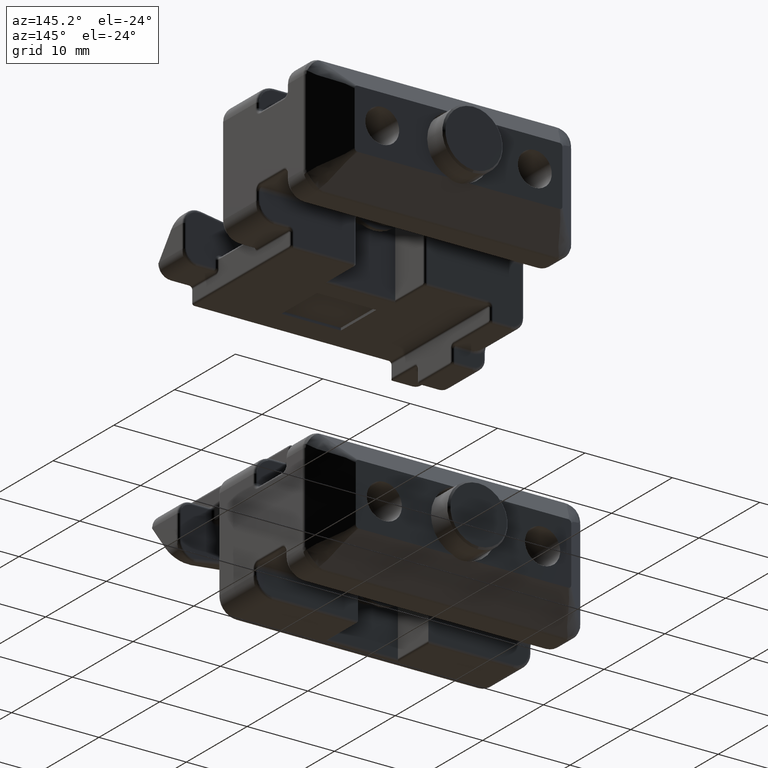
[diagram: clean part render]
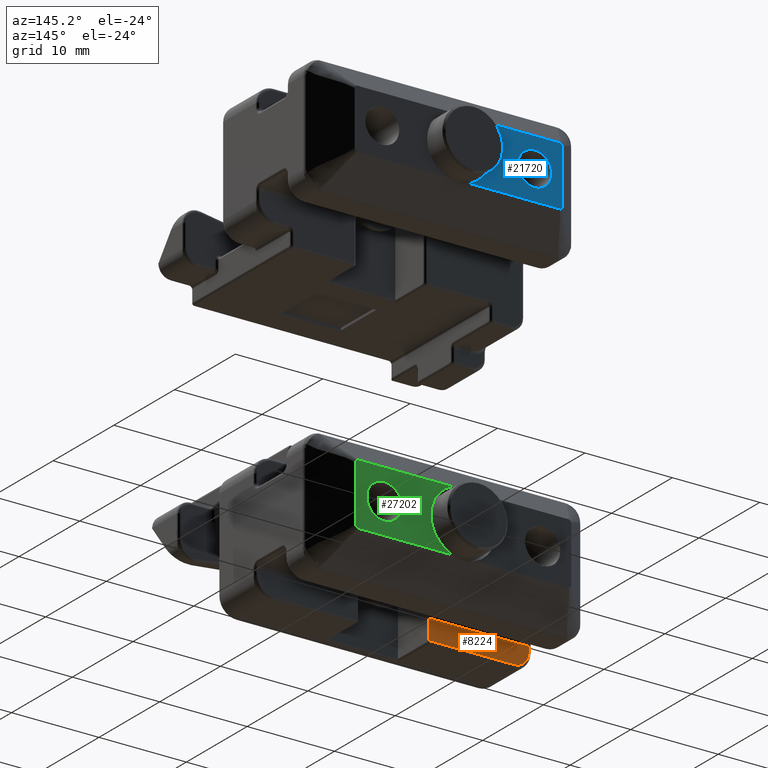
[diagram: same view with three faces highlighted in distinct colors, each labeled with its STEP entity id]
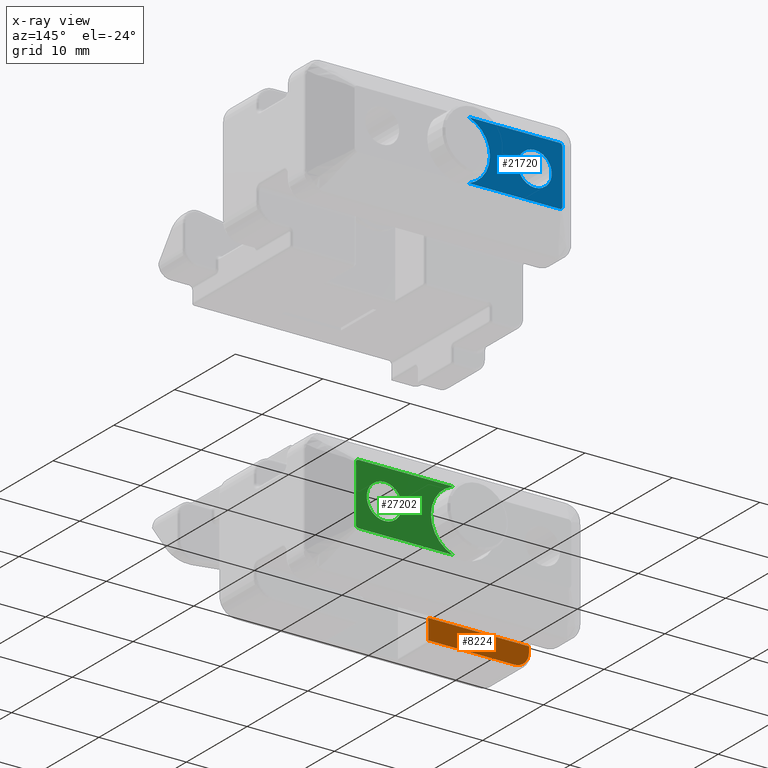
[diagram: x-ray of the same camera — body ghosted, the three highlighted faces saturated]
A machine part, auxiliary view with three faces highlighted in distinct colors.
The next image is the same camera in x-ray (body ghosted, the three faces saturated) — at least one of them is partly hidden behind the body in this view.
Their STEP definitions:

[orange] entity #8224 — the highlighted planar face has unit normal (0, -1, 0).
#39 = DIRECTION ( 'NONE',  ( -1.000000000000000000, -0.0000000000000000000, -0.0000000000000000000 ) ) ;
#220 = VECTOR ( 'NONE', #18073, 1000.000000000000000 ) ;
#228 = LINE ( 'NONE', #20697, #220 ) ;
#458 = CARTESIAN_POINT ( 'NONE',  ( -115.4299052700655000, 53.60120506187342200, -65.00413926972206000 ) ) ;
#562 = CARTESIAN_POINT ( 'NONE',  ( -115.1834542875697700, 53.60120491132435900, -65.23172811979715400 ) ) ;
#668 = CARTESIAN_POINT ( 'NONE',  ( -114.7499376024052100, 53.60120505625111100, -65.47008172239357300 ) ) ;
#749 = ORIENTED_EDGE ( 'NONE', *, *, #6576, .F. ) ;
#771 = CARTESIAN_POINT ( 'NONE',  ( -114.1511978571563500, 53.60120507557526500, -65.57791073726552600 ) ) ;
#1839 = AXIS2_PLACEMENT_3D ( 'NONE', #5778, #5668, #5598 ) ;
#2111 = VERTEX_POINT ( 'NONE', #10734 ) ;
#2650 = CARTESIAN_POINT ( 'NONE',  ( -104.3426978571563400, 53.60120507557526500, -63.26411073726552600 ) ) ;
#2889 = CARTESIAN_POINT ( 'NONE',  ( -115.3781884469799500, 53.60120507460014500, -65.05912077738888400 ) ) ;
#2999 = CARTESIAN_POINT ( 'NONE',  ( -115.1117456607731000, 53.60120483907727600, -65.28340974278640400 ) ) ;
#3109 = CARTESIAN_POINT ( 'NONE',  ( -114.6981037893318800, 53.60120506530973500, -65.48819185909150100 ) ) ;
#4352 = VECTOR ( 'NONE', #12678, 1000.000000000000000 ) ;
#4880 = CARTESIAN_POINT ( 'NONE',  ( -115.8613978571563300, 53.60120507557526500, -63.86771073726553300 ) ) ;
#5247 = CARTESIAN_POINT ( 'NONE',  ( -115.8211206106678600, 53.60120507479586400, -64.24043743906889900 ) ) ;
#5366 = CARTESIAN_POINT ( 'NONE',  ( -115.3655702166019200, 53.60120507548579400, -65.07191711142412800 ) ) ;
#5471 = CARTESIAN_POINT ( 'NONE',  ( -115.0651277324611900, 53.60120485360522500, -65.31372296417228500 ) ) ;
#5583 = CARTESIAN_POINT ( 'NONE',  ( -114.6941087233894500, 53.60120506504564000, -65.48953211541510200 ) ) ;
#5598 = DIRECTION ( 'NONE',  ( 0.0000000000000000000, -0.0000000000000000000, -1.000000000000000000 ) ) ;
#5668 = DIRECTION ( 'NONE',  ( 0.0000000000000000000, -1.000000000000000000, 0.0000000000000000000 ) ) ;
#5761 = ORIENTED_EDGE ( 'NONE', *, *, #20480, .F. ) ;
#5778 = CARTESIAN_POINT ( 'NONE',  ( -84.47419785715634100, 53.60120507557526500, -65.87971073726554000 ) ) ;
#6576 = EDGE_CURVE ( 'NONE', #2111, #10804, #30123, .T. ) ;
#6866 = PLANE ( 'NONE',  #1839 ) ;
#7693 = CARTESIAN_POINT ( 'NONE',  ( -115.7788110588676300, 53.60120506588097600, -64.39576171868297600 ) ) ;
#7799 = CARTESIAN_POINT ( 'NONE',  ( -115.3605921213949000, 53.60120507557524400, -65.07690472036432500 ) ) ;
#7830 = EDGE_CURVE ( 'NONE', #14963, #31024, #18726, .T. ) ;
#7905 = CARTESIAN_POINT ( 'NONE',  ( -115.0470213100227300, 53.60120487109871600, -65.32494555133331500 ) ) ;
#8018 = CARTESIAN_POINT ( 'NONE',  ( -114.6887803458120500, 53.60120506324509600, -65.49131652284593500 ) ) ;
#8224 = ADVANCED_FACE ( 'NONE', ( #13194 ), #6866, .F. ) ;
#10087 = CARTESIAN_POINT ( 'NONE',  ( -115.6955554626971000, 53.60120498934524800, -64.61187881539402200 ) ) ;
#10194 = CARTESIAN_POINT ( 'NONE',  ( -115.3220266540998300, 53.60120510193009100, -65.11828039354198000 ) ) ;
#10301 = CARTESIAN_POINT ( 'NONE',  ( -115.0178956329188100, 53.60120490010977800, -65.34251489384840300 ) ) ;
#10400 = CARTESIAN_POINT ( 'NONE',  ( -114.6600709656771500, 53.60120505219152400, -65.50067090744362000 ) ) ;
#10734 = CARTESIAN_POINT ( 'NONE',  ( -115.8613978571563300, 53.60120507557526500, -63.26411073726552600 ) ) ;
#10804 = VERTEX_POINT ( 'NONE', #4880 ) ;
#10981 = EDGE_LOOP ( 'NONE', ( #14453, #5761, #749, #13761, #15890 ) ) ;
#12483 = CARTESIAN_POINT ( 'NONE',  ( -104.3426978571563200, 53.60120507557526500, -65.57791073726552600 ) ) ;
#12531 = CARTESIAN_POINT ( 'NONE',  ( -115.5467765830653800, 53.60120500133741900, -64.85825493300838200 ) ) ;
#12637 = CARTESIAN_POINT ( 'NONE',  ( -115.2266039293510300, 53.60120498008633700, -65.19786147841985300 ) ) ;
#12639 = CARTESIAN_POINT ( 'NONE',  ( -115.8613978571563300, 53.60120507557526500, -65.87971073726554000 ) ) ;
#12678 = DIRECTION ( 'NONE',  ( 0.0000000000000000000, -0.0000000000000000000, -1.000000000000000000 ) ) ;
#12734 = CARTESIAN_POINT ( 'NONE',  ( -114.9460336070498400, 53.60120496257781800, -65.38312108645389700 ) ) ;
#12836 = CARTESIAN_POINT ( 'NONE',  ( -114.5241288073681600, 53.60120499331505800, -65.53784569567641000 ) ) ;
#13180 = EDGE_CURVE ( 'NONE', #18154, #14963, #228, .T. ) ;
#13194 = FACE_OUTER_BOUND ( 'NONE', #10981, .T. ) ;
#13619 = CARTESIAN_POINT ( 'NONE',  ( -114.1511978571563500, 53.60120507557526500, -65.57791073726552600 ) ) ;
#13761 = ORIENTED_EDGE ( 'NONE', *, *, #22117, .F. ) ;
#14453 = ORIENTED_EDGE ( 'NONE', *, *, #13180, .F. ) ;
#14756 = CARTESIAN_POINT ( 'NONE',  ( -115.8613324351292700, 53.60120507557525800, -63.97501925028387100 ) ) ;
#14852 = CARTESIAN_POINT ( 'NONE',  ( -115.4580465291872400, 53.60120504839054700, -64.97143189717780800 ) ) ;
#14953 = CARTESIAN_POINT ( 'NONE',  ( -115.2015944771943600, 53.60120493970447300, -65.21770686577041000 ) ) ;
#14963 = VERTEX_POINT ( 'NONE', #12483 ) ;
#15058 = CARTESIAN_POINT ( 'NONE',  ( -114.8007502006629700, 53.60120504527495200, -65.45180597104328500 ) ) ;
#15162 = CARTESIAN_POINT ( 'NONE',  ( -114.2585491954485700, 53.60120507557525100, -65.57807062695005100 ) ) ;
#15890 = ORIENTED_EDGE ( 'NONE', *, *, #7830, .F. ) ;
#17189 = CARTESIAN_POINT ( 'NONE',  ( -115.3956578141173800, 53.60120507183642500, -65.04101354350899600 ) ) ;
#17295 = CARTESIAN_POINT ( 'NONE',  ( -115.1473167499237700, 53.60120485929290600, -65.25887081750974500 ) ) ;
#17395 = CARTESIAN_POINT ( 'NONE',  ( -114.7069487610251000, 53.60120506434996200, -65.48525179407433000 ) ) ;
#17525 = LINE ( 'NONE', #19327, #23117 ) ;
#18073 = DIRECTION ( 'NONE',  ( 1.000000000000000000, -0.0000000000000000000, -0.0000000000000000000 ) ) ;
#18154 = VERTEX_POINT ( 'NONE', #13619 ) ;
#18726 = LINE ( 'NONE', #20314, #28028 ) ;
#19317 = CARTESIAN_POINT ( 'NONE',  ( -115.8613978571563300, 53.60120507557526500, -63.86771073726553300 ) ) ;
#19327 = CARTESIAN_POINT ( 'NONE',  ( -84.47419785715634100, 53.60120507557526500, -63.26411073726552600 ) ) ;
#19514 = CARTESIAN_POINT ( 'NONE',  ( -115.8511886554271700, 53.60120506686172300, -64.08231301596480000 ) ) ;
#19613 = CARTESIAN_POINT ( 'NONE',  ( -115.3693684089188300, 53.60120507532634800, -65.06809082732833400 ) ) ;
#19719 = CARTESIAN_POINT ( 'NONE',  ( -115.0767148546801300, 53.60120484664186300, -65.30634507328862500 ) ) ;
#19817 = CARTESIAN_POINT ( 'NONE',  ( -114.6944299140168200, 53.60120506508989300, -65.48942442144966900 ) ) ;
#20250 = DIRECTION ( 'NONE',  ( -0.0000000000000000000, 0.0000000000000000000, 1.000000000000000000 ) ) ;
#20314 = CARTESIAN_POINT ( 'NONE',  ( -104.3426978571563400, 53.60120507557526500, -65.87971073726554000 ) ) ;
#20480 = EDGE_CURVE ( 'NONE', #10804, #18154, #27371, .T. ) ;
#20697 = CARTESIAN_POINT ( 'NONE',  ( -84.47419785715634100, 53.60120507557526500, -65.57791073726552600 ) ) ;
#21886 = CARTESIAN_POINT ( 'NONE',  ( -115.8086279519287600, 53.60120507858651000, -64.29267662478943600 ) ) ;
#21984 = CARTESIAN_POINT ( 'NONE',  ( -115.3630340620397000, 53.60120507555709700, -65.07446394957072800 ) ) ;
#22085 = CARTESIAN_POINT ( 'NONE',  ( -115.0507713193798100, 53.60120486712171600, -65.32262532498566500 ) ) ;
#22117 = EDGE_CURVE ( 'NONE', #31024, #2111, #17525, .T. ) ;
#22186 = CARTESIAN_POINT ( 'NONE',  ( -114.6936404815802700, 53.60120506491676200, -65.48968929889720400 ) ) ;
#23117 = VECTOR ( 'NONE', #39, 1000.000000000000000 ) ;
#24309 = CARTESIAN_POINT ( 'NONE',  ( -115.7597656586572200, 53.60120504489524500, -64.45173126418913500 ) ) ;
#24420 = CARTESIAN_POINT ( 'NONE',  ( -115.3572839686353000, 53.60120507557525100, -65.08020584521659700 ) ) ;
#24523 = CARTESIAN_POINT ( 'NONE',  ( -115.0353025918647100, 53.60120488296633600, -65.33207284576511100 ) ) ;
#24627 = CARTESIAN_POINT ( 'NONE',  ( -114.6792230784798100, 53.60120505976245700, -65.49447244471700500 ) ) ;
#26690 = CARTESIAN_POINT ( 'NONE',  ( -115.6418964607943400, 53.60120496900118800, -64.71429611797434200 ) ) ;
#26794 = CARTESIAN_POINT ( 'NONE',  ( -115.2367320072921300, 53.60120499435246400, -65.18957003299252100 ) ) ;
#26884 = CARTESIAN_POINT ( 'NONE',  ( -115.0010211859749200, 53.60120491538342700, -65.35223343083554000 ) ) ;
#26993 = CARTESIAN_POINT ( 'NONE',  ( -114.5894482283022200, 53.60120501974250800, -65.52214691757232900 ) ) ;
#27371 = B_SPLINE_CURVE_WITH_KNOTS ( 'NONE', 3,
 ( #19317, #14756, #19514, #5247, #21886, #7693, #24309, #10087, #26690, #12531, #29133, #14852, #458, #17189, #2889, #19613, #5366, #21984, #7799, #24420, #10194, #26794, #12637, #29231, #14953, #562, #17295, #2999, #19719, #5471, #22085, #7905, #24523, #10301, #26884, #12734, #29319, #15058, #668, #17395, #3109, #19817, #5583, #22186, #8018, #24627, #10400, #26993, #12836, #29425, #15162, #771 ),
 .UNSPECIFIED., .F., .F.,
 ( 4, 2, 2, 2, 2, 2, 1, 1, 1, 1, 2, 2, 2, 2, 2, 1, 2, 2, 2, 1, 2, 2, 2, 2, 2, 2, 1, 1, 2, 4 ),
 ( 0.0000000000000000000, 0.1250000000050863800, 0.1875000000076295600, 0.2500000000101727500, 0.3750000000152394800, 0.4375000000177770000, 0.4687500000190505400, 0.4843750000196766500, 0.4921875000199951700, 0.4960937500201543200, 0.4980468750202338700, 0.5000000000203134200, 0.5625000000175843800, 0.5703125000172379900, 0.5781250000168917100, 0.5937500000162075900, 0.6250000000148310300, 0.6406250000141362500, 0.6445312500139492900, 0.6484375000137624400, 0.6562500000133886200, 0.6875000000118980400, 0.7500000000089119800, 0.7812500000074323900, 0.7851562500073021600, 0.7890625000071719300, 0.7968750000069113600, 0.8125000000063749000, 0.8750000000042509300, 1.000000000000000000 ),
 .UNSPECIFIED. ) ;
#28028 = VECTOR ( 'NONE', #20250, 1000.000000000000000 ) ;
#29133 = CARTESIAN_POINT ( 'NONE',  ( -115.5126381772456200, 53.60120502055136200, -64.90463339154722200 ) ) ;
#29231 = CARTESIAN_POINT ( 'NONE',  ( -115.2049870282292300, 53.60120494565056500, -65.21510225629104700 ) ) ;
#29319 = CARTESIAN_POINT ( 'NONE',  ( -114.9061054851515800, 53.60120498854460200, -65.40302377322389300 ) ) ;
#29425 = CARTESIAN_POINT ( 'NONE',  ( -114.3659287862504100, 53.60120498373948500, -65.56800720697070500 ) ) ;
#30123 = LINE ( 'NONE', #12639, #4352 ) ;
#31024 = VERTEX_POINT ( 'NONE', #2650 ) ;

[blue] entity #21720 — the highlighted planar face has unit normal (0, -1, 0).
#314 = DIRECTION ( 'NONE',  ( 0.0000000000000000000, 1.000000000000000000, 0.0000000000000000000 ) ) ;
#345 = VERTEX_POINT ( 'NONE', #2493 ) ;
#827 = AXIS2_PLACEMENT_3D ( 'NONE', #22942, #8758, #25375 ) ;
#1778 = CARTESIAN_POINT ( 'NONE',  ( -111.2912510682808300, 65.17020507557525400, -16.86831073726554200 ) ) ;
#1822 = EDGE_CURVE ( 'NONE', #9407, #23162, #23393, .T. ) ;
#1971 = EDGE_CURVE ( 'NONE', #7303, #345, #22602, .T. ) ;
#2493 = CARTESIAN_POINT ( 'NONE',  ( -100.9156978571563200, 65.17020507557525400, -16.86831073726553100 ) ) ;
#2586 = VECTOR ( 'NONE', #25144, 1000.000000000000000 ) ;
#3946 = CARTESIAN_POINT ( 'NONE',  ( -111.5985129700795400, 65.17020507557526800, -23.49371177144259100 ) ) ;
#3970 = EDGE_LOOP ( 'NONE', ( #27662, #16255, #18337, #12224, #4613, #12791 ) ) ;
#4204 = CARTESIAN_POINT ( 'NONE',  ( -111.2912510682808300, 65.17020507557525400, -16.86831073726554200 ) ) ;
#4240 = DIRECTION ( 'NONE',  ( -1.000000000000000000, -0.0000000000000000000, -0.0000000000000000000 ) ) ;
#4613 = ORIENTED_EDGE ( 'NONE', *, *, #1822, .T. ) ;
#6422 = CARTESIAN_POINT ( 'NONE',  ( -111.5103884259305700, 65.17020507557521100, -23.59841623684876300 ) ) ;
#6709 = CARTESIAN_POINT ( 'NONE',  ( -111.3830387396060400, 65.17020507557525400, -16.87442645721419500 ) ) ;
#7025 = CIRCLE ( 'NONE', #10643, 1.940000000000000800 ) ;
#7303 = VERTEX_POINT ( 'NONE', #10089 ) ;
#8254 = VERTEX_POINT ( 'NONE', #4204 ) ;
#8431 = EDGE_LOOP ( 'NONE', ( #26011, #14683 ) ) ;
#8512 = CARTESIAN_POINT ( 'NONE',  ( -84.47419785715631200, 65.17020507557525400, -23.65831073726552700 ) ) ;
#8758 = DIRECTION ( 'NONE',  ( 0.0000000000000000000, -1.000000000000000000, 0.0000000000000000000 ) ) ;
#8841 = CARTESIAN_POINT ( 'NONE',  ( -111.3833957763655000, 65.17020507557524000, -23.65212600405619600 ) ) ;
#9069 = LINE ( 'NONE', #8512, #2586 ) ;
#9108 = CARTESIAN_POINT ( 'NONE',  ( -111.5098093664440000, 65.17020507557524000, -16.92778820180610200 ) ) ;
#9205 = CIRCLE ( 'NONE', #25292, 1.940000000000000800 ) ;
#9407 = VERTEX_POINT ( 'NONE', #25787 ) ;
#9588 = AXIS2_PLACEMENT_3D ( 'NONE', #12193, #12052, #12085 ) ;
#9690 = CARTESIAN_POINT ( 'NONE',  ( -111.6341978571563400, 65.17020507557525400, -17.21125752614101100 ) ) ;
#10089 = CARTESIAN_POINT ( 'NONE',  ( -100.9156978571563500, 65.17020507557525400, -23.65831073726552300 ) ) ;
#10643 = AXIS2_PLACEMENT_3D ( 'NONE', #14740, #314, #17069 ) ;
#10942 = CARTESIAN_POINT ( 'NONE',  ( -108.4816978571563200, 65.17020507557525400, -22.20331073726553200 ) ) ;
#11244 = CARTESIAN_POINT ( 'NONE',  ( -111.2912510682808300, 65.17020507557525400, -23.65831073726552300 ) ) ;
#11508 = CARTESIAN_POINT ( 'NONE',  ( -111.5983366278295300, 65.17020507557524000, -17.03254978008072100 ) ) ;
#11997 = VERTEX_POINT ( 'NONE', #10942 ) ;
#12052 = DIRECTION ( 'NONE',  ( -0.0000000000000000000, 1.000000000000000000, -0.0000000000000000000 ) ) ;
#12085 = DIRECTION ( 'NONE',  ( 0.0000000000000000000, 0.0000000000000000000, -1.000000000000000000 ) ) ;
#12193 = CARTESIAN_POINT ( 'NONE',  ( -99.75169785715631600, 65.17020507557525400, -20.26331073726553500 ) ) ;
#12224 = ORIENTED_EDGE ( 'NONE', *, *, #28076, .F. ) ;
#12607 = B_SPLINE_CURVE_WITH_KNOTS ( 'NONE', 3,
 ( #1778, #16110, #6709, #23286, #9108, #25728, #11508, #28117, #13890, #30502 ),
 .UNSPECIFIED., .F., .F.,
 ( 4, 2, 2, 2, 4 ),
 ( 1.387778780781445500E-017, 0.0001367825628446032900, 0.0002735651256891927000, 0.0004103476885337821100, 0.0005471302513783715200 ),
 .UNSPECIFIED. ) ;
#12791 = ORIENTED_EDGE ( 'NONE', *, *, #18706, .F. ) ;
#13537 = CARTESIAN_POINT ( 'NONE',  ( -111.6341978571563400, 65.17020507557525400, -23.31536394839006500 ) ) ;
#13890 = CARTESIAN_POINT ( 'NONE',  ( -111.6341978571563400, 65.17020507557525400, -17.16518642968778600 ) ) ;
#13936 = CARTESIAN_POINT ( 'NONE',  ( -111.6341978571563200, 65.17020507557525400, -16.86831073726553100 ) ) ;
#14007 = DIRECTION ( 'NONE',  ( -0.0000000000000000000, 0.0000000000000000000, 1.000000000000000000 ) ) ;
#14058 = CARTESIAN_POINT ( 'NONE',  ( -108.4816978571563200, 65.17020507557525400, -20.26331073726553500 ) ) ;
#14683 = ORIENTED_EDGE ( 'NONE', *, *, #15688, .F. ) ;
#14740 = CARTESIAN_POINT ( 'NONE',  ( -108.4816978571563200, 65.17020507557525400, -20.26331073726553500 ) ) ;
#15688 = EDGE_CURVE ( 'NONE', #11997, #24656, #9205, .T. ) ;
#16110 = CARTESIAN_POINT ( 'NONE',  ( -111.3372445730898800, 65.17020507557524000, -16.86831073726553100 ) ) ;
#16255 = ORIENTED_EDGE ( 'NONE', *, *, #1971, .F. ) ;
#16379 = DIRECTION ( 'NONE',  ( 0.0000000000000000000, 0.0000000000000000000, 1.000000000000000000 ) ) ;
#17069 = DIRECTION ( 'NONE',  ( 0.0000000000000000000, 0.0000000000000000000, 1.000000000000000000 ) ) ;
#18221 = CARTESIAN_POINT ( 'NONE',  ( -111.6280821372076800, 65.17020507557529600, -23.40715161971526800 ) ) ;
#18337 = ORIENTED_EDGE ( 'NONE', *, *, #25669, .F. ) ;
#18706 = EDGE_CURVE ( 'NONE', #8254, #23162, #12607, .T. ) ;
#18722 = FACE_BOUND ( 'NONE', #8431, .T. ) ;
#20646 = CARTESIAN_POINT ( 'NONE',  ( -111.5747203926157200, 65.17020507557521100, -23.53392224655322100 ) ) ;
#20908 = CARTESIAN_POINT ( 'NONE',  ( -84.47419785715631200, 65.17020507557525400, -16.86831073726553500 ) ) ;
#21720 = ADVANCED_FACE ( 'NONE', ( #18722, #25069 ), #26820, .F. ) ;
#21721 = LINE ( 'NONE', #20908, #28109 ) ;
#22602 = CIRCLE ( 'NONE', #9588, 3.588999999999998600 ) ;
#22624 = VECTOR ( 'NONE', #14007, 1000.000000000000000 ) ;
#22667 = B_SPLINE_CURVE_WITH_KNOTS ( 'NONE', 3,
 ( #13537, #27618, #18221, #3946, #20646, #6422, #23022, #8841, #25440, #11244 ),
 .UNSPECIFIED., .F., .F.,
 ( 4, 2, 2, 2, 4 ),
 ( 0.0000000000000000000, 0.0001367825628446019300, 0.0002735651256892038600, 0.0004103476885338058000, 0.0005471302513784077300 ),
 .UNSPECIFIED. ) ;
#22942 = CARTESIAN_POINT ( 'NONE',  ( -84.47419785715631200, 65.17020507557525400, -16.86831073726553100 ) ) ;
#23022 = CARTESIAN_POINT ( 'NONE',  ( -111.4699588143411400, 65.17020507557522500, -23.62244950793872900 ) ) ;
#23162 = VERTEX_POINT ( 'NONE', #9690 ) ;
#23286 = CARTESIAN_POINT ( 'NONE',  ( -111.4695988913333500, 65.17020507557524000, -16.90399562434228600 ) ) ;
#23393 = LINE ( 'NONE', #13936, #22624 ) ;
#24192 = EDGE_CURVE ( 'NONE', #345, #8254, #21721, .T. ) ;
#24656 = VERTEX_POINT ( 'NONE', #29464 ) ;
#25069 = FACE_OUTER_BOUND ( 'NONE', #3970, .T. ) ;
#25144 = DIRECTION ( 'NONE',  ( 1.000000000000000000, 0.0000000000000000000, 0.0000000000000000000 ) ) ;
#25292 = AXIS2_PLACEMENT_3D ( 'NONE', #14058, #30671, #16379 ) ;
#25375 = DIRECTION ( 'NONE',  ( 0.0000000000000000000, -0.0000000000000000000, -1.000000000000000000 ) ) ;
#25440 = CARTESIAN_POINT ( 'NONE',  ( -111.3373221647340900, 65.17020507557524000, -23.65831073726553100 ) ) ;
#25669 = EDGE_CURVE ( 'NONE', #25843, #7303, #9069, .T. ) ;
#25728 = CARTESIAN_POINT ( 'NONE',  ( -111.5743033567395500, 65.17020507557521100, -16.99212016849128700 ) ) ;
#25787 = CARTESIAN_POINT ( 'NONE',  ( -111.6341978571563400, 65.17020507557525400, -23.31536394839006500 ) ) ;
#25843 = VERTEX_POINT ( 'NONE', #30326 ) ;
#26011 = ORIENTED_EDGE ( 'NONE', *, *, #31005, .F. ) ;
#26820 = PLANE ( 'NONE',  #827 ) ;
#27618 = CARTESIAN_POINT ( 'NONE',  ( -111.6341978571563400, 65.17020507557525400, -23.36135745319911900 ) ) ;
#27662 = ORIENTED_EDGE ( 'NONE', *, *, #24192, .F. ) ;
#28076 = EDGE_CURVE ( 'NONE', #9407, #25843, #22667, .T. ) ;
#28109 = VECTOR ( 'NONE', #4240, 1000.000000000000000 ) ;
#28117 = CARTESIAN_POINT ( 'NONE',  ( -111.6280131239469900, 65.17020507557525400, -17.11911281805635500 ) ) ;
#29464 = CARTESIAN_POINT ( 'NONE',  ( -108.4816978571563200, 65.17020507557525400, -18.32331073726553300 ) ) ;
#30326 = CARTESIAN_POINT ( 'NONE',  ( -111.2912510682808300, 65.17020507557525400, -23.65831073726552300 ) ) ;
#30502 = CARTESIAN_POINT ( 'NONE',  ( -111.6341978571563400, 65.17020507557525400, -17.21125752614101100 ) ) ;
#30671 = DIRECTION ( 'NONE',  ( 0.0000000000000000000, 1.000000000000000000, 0.0000000000000000000 ) ) ;
#31005 = EDGE_CURVE ( 'NONE', #24656, #11997, #7025, .T. ) ;

[green] entity #27202 — the highlighted planar face has unit normal (0, -1, 0).
#78 = LINE ( 'NONE', #8147, #18432 ) ;
#821 = ORIENTED_EDGE ( 'NONE', *, *, #12924, .F. ) ;
#1316 = VERTEX_POINT ( 'NONE', #20764 ) ;
#1888 = LINE ( 'NONE', #19779, #2848 ) ;
#2067 = CARTESIAN_POINT ( 'NONE',  ( -91.26469785715633500, 65.17020507557526800, -56.82571073726553100 ) ) ;
#2848 = VECTOR ( 'NONE', #5543, 1000.000000000000000 ) ;
#3304 = DIRECTION ( 'NONE',  ( -0.0000000000000000000, 1.000000000000000000, -0.0000000000000000000 ) ) ;
#3666 = CARTESIAN_POINT ( 'NONE',  ( -84.47419785715634100, 65.17020507557526800, -62.35871073726552500 ) ) ;
#4127 = EDGE_LOOP ( 'NONE', ( #821, #14493, #17598, #14330, #15677, #20287 ) ) ;
#4459 = CARTESIAN_POINT ( 'NONE',  ( -91.26469785715633500, 65.17020507557526800, -60.84971073726552500 ) ) ;
#4517 = CARTESIAN_POINT ( 'NONE',  ( -88.35087256809320900, 65.17020507557526800, -55.31671073726553100 ) ) ;
#4623 = CARTESIAN_POINT ( 'NONE',  ( -88.30317208784792600, 65.17020507557528200, -55.31671073726552400 ) ) ;
#4671 = B_SPLINE_CURVE_WITH_KNOTS ( 'NONE', 3,
 ( #4517, #4623, #7092, #23684, #9489, #26099, #11910, #28523, #14262, #30899 ),
 .UNSPECIFIED., .F., .F.,
 ( 4, 2, 2, 2, 4 ),
 ( 0.0000000000000000000, 0.0001418590290944970100, 0.0002837180581889940100, 0.0004255770872834909900, 0.0005674361163779880200 ),
 .UNSPECIFIED. ) ;
#4991 = EDGE_CURVE ( 'NONE', #7964, #28343, #23396, .T. ) ;
#5543 = DIRECTION ( 'NONE',  ( 1.000000000000000000, 0.0000000000000000000, 0.0000000000000000000 ) ) ;
#5676 = CARTESIAN_POINT ( 'NONE',  ( -84.47419785715634100, 65.17020507557526800, -55.31671073726552400 ) ) ;
#6146 = DIRECTION ( 'NONE',  ( 0.0000000000000000000, -0.0000000000000000000, -1.000000000000000000 ) ) ;
#7092 = CARTESIAN_POINT ( 'NONE',  ( -88.25567834401779500, 65.17020507557528200, -55.32305343238754600 ) ) ;
#7465 = CARTESIAN_POINT ( 'NONE',  ( -88.35087256809320900, 65.17020507557528200, -62.35871073726551100 ) ) ;
#7964 = VERTEX_POINT ( 'NONE', #15896 ) ;
#8147 = CARTESIAN_POINT ( 'NONE',  ( -87.99519785715635600, 65.17020507557526800, -52.90231073726553000 ) ) ;
#8515 = CARTESIAN_POINT ( 'NONE',  ( -88.30309161651383900, 65.17020507557528200, -62.35871073726552500 ) ) ;
#9489 = CARTESIAN_POINT ( 'NONE',  ( -88.12420282793641500, 65.17020507557526800, -55.37839561286124700 ) ) ;
#10193 = EDGE_CURVE ( 'NONE', #25070, #19697, #15658, .T. ) ;
#11113 = DIRECTION ( 'NONE',  ( 0.0000000000000000000, 1.000000000000000000, 0.0000000000000000000 ) ) ;
#11544 = CIRCLE ( 'NONE', #17005, 3.722199999999995100 ) ;
#11787 = ORIENTED_EDGE ( 'NONE', *, *, #14115, .F. ) ;
#11910 = CARTESIAN_POINT ( 'NONE',  ( -88.03239001870558400, 65.17020507557525400, -55.48704524971095300 ) ) ;
#12356 = CARTESIAN_POINT ( 'NONE',  ( -99.11149785715636500, 65.17020507557526800, -62.35871073726554000 ) ) ;
#12457 = ORIENTED_EDGE ( 'NONE', *, *, #10193, .F. ) ;
#12509 = EDGE_CURVE ( 'NONE', #21110, #14536, #26238, .T. ) ;
#12924 = EDGE_CURVE ( 'NONE', #15530, #28343, #1888, .T. ) ;
#13176 = CARTESIAN_POINT ( 'NONE',  ( -87.99519785715637000, 65.17020507557528200, -62.05073650657395500 ) ) ;
#13447 = CIRCLE ( 'NONE', #24938, 2.012000000000000000 ) ;
#14115 = EDGE_CURVE ( 'NONE', #19697, #25070, #13447, .T. ) ;
#14262 = CARTESIAN_POINT ( 'NONE',  ( -87.99519785715634200, 65.17020507557525400, -55.62460449662301400 ) ) ;
#14330 = ORIENTED_EDGE ( 'NONE', *, *, #20304, .T. ) ;
#14493 = ORIENTED_EDGE ( 'NONE', *, *, #29155, .F. ) ;
#14536 = VERTEX_POINT ( 'NONE', #30115 ) ;
#14705 = FACE_BOUND ( 'NONE', #23172, .T. ) ;
#15530 = VERTEX_POINT ( 'NONE', #12356 ) ;
#15573 = EDGE_CURVE ( 'NONE', #7964, #1316, #78, .T. ) ;
#15658 = CIRCLE ( 'NONE', #29923, 2.012000000000000000 ) ;
#15677 = ORIENTED_EDGE ( 'NONE', *, *, #15573, .F. ) ;
#15896 = CARTESIAN_POINT ( 'NONE',  ( -87.99519785715637000, 65.17020507557526800, -62.00303602632868700 ) ) ;
#15906 = DIRECTION ( 'NONE',  ( 0.0000000000000000000, 0.0000000000000000000, 1.000000000000000000 ) ) ;
#16007 = DIRECTION ( 'NONE',  ( 0.0000000000000000000, 1.000000000000000000, 0.0000000000000000000 ) ) ;
#16108 = CARTESIAN_POINT ( 'NONE',  ( -91.26469785715633500, 65.17020507557526800, -58.83771073726552500 ) ) ;
#17005 = AXIS2_PLACEMENT_3D ( 'NONE', #17585, #3304, #20023 ) ;
#17460 = CARTESIAN_POINT ( 'NONE',  ( -88.35087256809320900, 65.17020507557526800, -55.31671073726553100 ) ) ;
#17585 = CARTESIAN_POINT ( 'NONE',  ( -100.3186978571563400, 65.17020507557526800, -58.83771073726552500 ) ) ;
#17598 = ORIENTED_EDGE ( 'NONE', *, *, #12509, .F. ) ;
#18432 = VECTOR ( 'NONE', #27124, 1000.000000000000000 ) ;
#19697 = VERTEX_POINT ( 'NONE', #4459 ) ;
#19779 = CARTESIAN_POINT ( 'NONE',  ( -84.47419785715634100, 65.17020507557526800, -62.35871073726553200 ) ) ;
#19915 = DIRECTION ( 'NONE',  ( -1.000000000000000000, -0.0000000000000000000, -0.0000000000000000000 ) ) ;
#20023 = DIRECTION ( 'NONE',  ( -3.728383162595904100E-015, 0.0000000000000000000, -1.000000000000000000 ) ) ;
#20260 = FACE_OUTER_BOUND ( 'NONE', #4127, .T. ) ;
#20287 = ORIENTED_EDGE ( 'NONE', *, *, #4991, .T. ) ;
#20304 = EDGE_CURVE ( 'NONE', #21110, #1316, #4671, .T. ) ;
#20375 = DIRECTION ( 'NONE',  ( 0.0000000000000000000, -1.000000000000000000, 0.0000000000000000000 ) ) ;
#20764 = CARTESIAN_POINT ( 'NONE',  ( -87.99519785715637000, 65.17020507557526800, -55.67238544820235500 ) ) ;
#21110 = VERTEX_POINT ( 'NONE', #17460 ) ;
#21182 = CARTESIAN_POINT ( 'NONE',  ( -88.16553236960180600, 65.17020507557528200, -62.32151857571628300 ) ) ;
#21242 = CARTESIAN_POINT ( 'NONE',  ( -88.00154055227841400, 65.17020507557528200, -62.09823025040410700 ) ) ;
#21355 = CARTESIAN_POINT ( 'NONE',  ( -88.03220713179473500, 65.17020507557526800, -62.18800294384502100 ) ) ;
#21396 = CARTESIAN_POINT ( 'NONE',  ( -88.05688273275210100, 65.17020507557525400, -62.22970576648553000 ) ) ;
#22017 = PLANE ( 'NONE',  #28383 ) ;
#23017 = CARTESIAN_POINT ( 'NONE',  ( -88.35087256809320900, 65.17020507557528200, -62.35871073726551100 ) ) ;
#23114 = CARTESIAN_POINT ( 'NONE',  ( -88.25530805640953200, 65.17020507557529600, -62.35229646756595700 ) ) ;
#23172 = EDGE_LOOP ( 'NONE', ( #12457, #11787 ) ) ;
#23396 = B_SPLINE_CURVE_WITH_KNOTS ( 'NONE', 3,
 ( #30773, #13176, #21242, #21355, #21396, #30907, #21182, #23114, #8515, #23017 ),
 .UNSPECIFIED., .F., .F.,
 ( 4, 2, 2, 2, 4 ),
 ( 6.938893903907228400E-018, 0.0001418590290945061900, 0.0002837180581890054500, 0.0004255770872835047100, 0.0005674361163780039600 ),
 .UNSPECIFIED. ) ;
#23684 = CARTESIAN_POINT ( 'NONE',  ( -88.16590565057684600, 65.17020507557525400, -55.35372001190388900 ) ) ;
#24938 = AXIS2_PLACEMENT_3D ( 'NONE', #25323, #11113, #27698 ) ;
#25070 = VERTEX_POINT ( 'NONE', #2067 ) ;
#25323 = CARTESIAN_POINT ( 'NONE',  ( -91.26469785715633500, 65.17020507557526800, -58.83771073726552500 ) ) ;
#25923 = VECTOR ( 'NONE', #19915, 1000.000000000000000 ) ;
#26099 = CARTESIAN_POINT ( 'NONE',  ( -88.05731524624842200, 65.17020507557525400, -55.44511515769145400 ) ) ;
#26238 = LINE ( 'NONE', #5676, #25923 ) ;
#27124 = DIRECTION ( 'NONE',  ( 0.0000000000000000000, -0.0000000000000000000, 1.000000000000000000 ) ) ;
#27202 = ADVANCED_FACE ( 'NONE', ( #14705, #20260 ), #22017, .F. ) ;
#27698 = DIRECTION ( 'NONE',  ( 0.0000000000000000000, 0.0000000000000000000, 1.000000000000000000 ) ) ;
#28343 = VERTEX_POINT ( 'NONE', #7465 ) ;
#28383 = AXIS2_PLACEMENT_3D ( 'NONE', #3666, #20375, #6146 ) ;
#28523 = CARTESIAN_POINT ( 'NONE',  ( -88.00161212685593200, 65.17020507557524000, -55.57682093651868600 ) ) ;
#29155 = EDGE_CURVE ( 'NONE', #14536, #15530, #11544, .T. ) ;
#29923 = AXIS2_PLACEMENT_3D ( 'NONE', #16108, #16007, #15906 ) ;
#30115 = CARTESIAN_POINT ( 'NONE',  ( -99.11149785715639400, 65.17020507557526800, -55.31671073726551700 ) ) ;
#30773 = CARTESIAN_POINT ( 'NONE',  ( -87.99519785715637000, 65.17020507557526800, -62.00303602632868700 ) ) ;
#30899 = CARTESIAN_POINT ( 'NONE',  ( -87.99519785715637000, 65.17020507557526800, -55.67238544820235500 ) ) ;
#30907 = CARTESIAN_POINT ( 'NONE',  ( -88.12360227758227900, 65.17020507557525400, -62.29659334817349500 ) ) ;